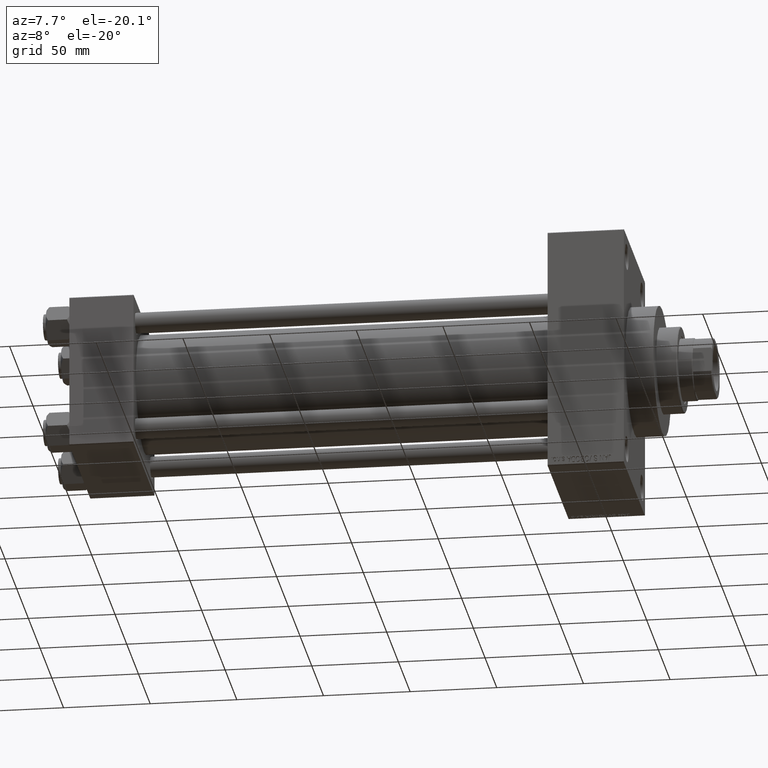
[diagram: clean part render]
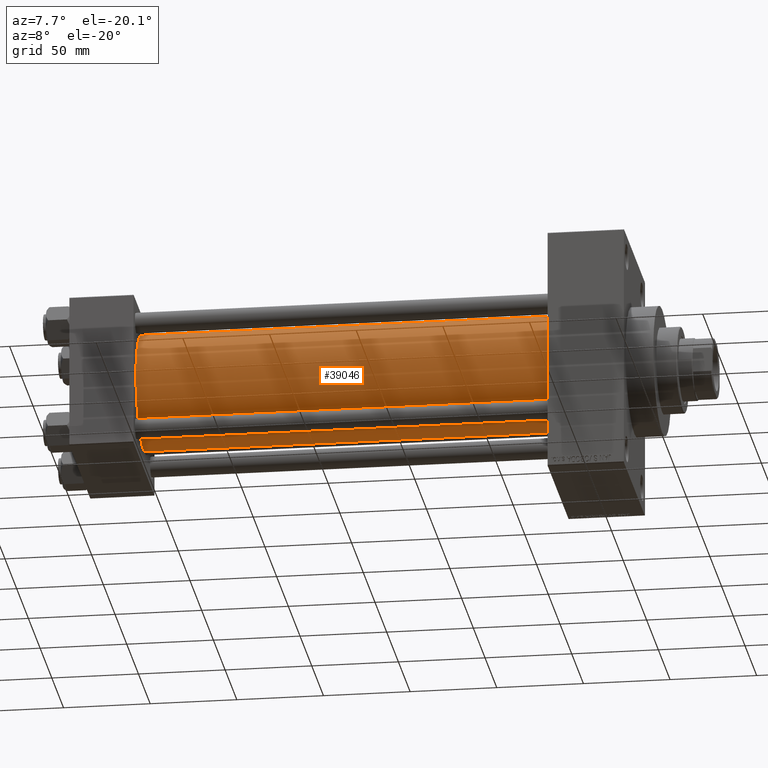
[diagram: same view with one face highlighted and labeled with its STEP entity id]
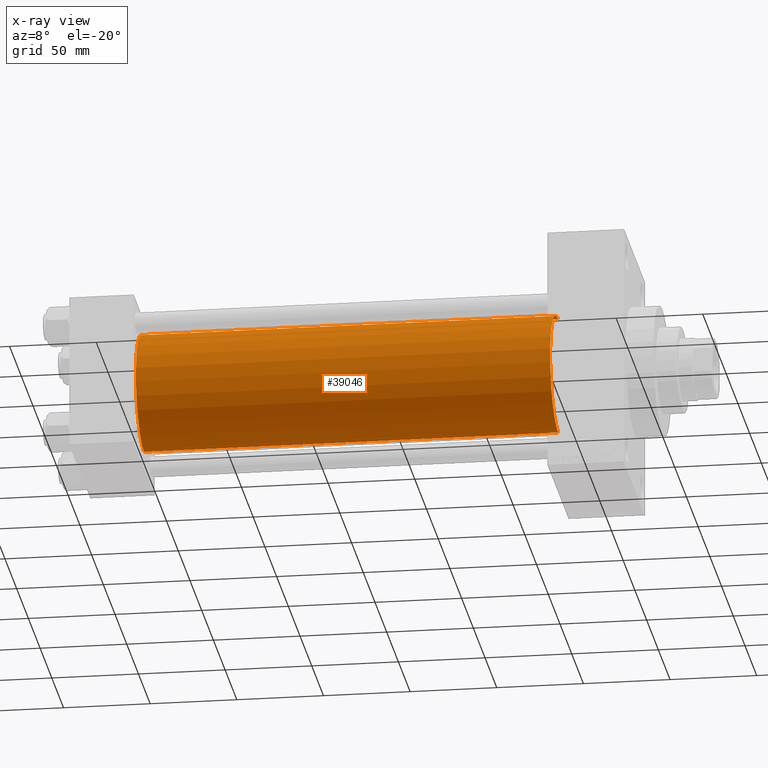
[diagram: x-ray of the same camera — body ghosted, the highlighted face saturated]
A machine part, auxiliary view. The second image highlights one B-rep face of the part: STEP entity #39046.
The next image is the same camera in x-ray: the body ghosted, the highlighted face saturated — about 0% of this face is hidden behind the body in this view.
In plain terms, the highlighted cylindrical surface (partial cylindrical patch) has radius 34.5 mm, axis along (-1, -0, -0).
Its self-contained STEP definition (entity closure, byte-faithful):
#1284 = DIRECTION ( 'NONE',  ( 0.000000000000000000, 0.000000000000000000, 1.000000000000000000 ) ) ;
#1744 = CARTESIAN_POINT ( 'NONE',  ( 275.9999999999999432, -2.602085213965210642E-15, 0.000000000000000000 ) ) ;
#1956 = DIRECTION ( 'NONE',  ( -1.000000000000000000, -0.000000000000000000, -0.000000000000000000 ) ) ;
#3676 = VECTOR ( 'NONE', #10392, 1000.000000000000000 ) ;
#4216 = DIRECTION ( 'NONE',  ( 1.000000000000000000, 0.000000000000000000, 0.000000000000000000 ) ) ;
#4290 = VERTEX_POINT ( 'NONE', #24306 ) ;
#5064 = FACE_OUTER_BOUND ( 'NONE', #7220, .T. ) ;
#7220 = EDGE_LOOP ( 'NONE', ( #24670, #46202, #25426, #37712 ) ) ;
#8781 = EDGE_CURVE ( 'NONE', #19589, #17750, #16852, .T. ) ;
#10392 = DIRECTION ( 'NONE',  ( -1.000000000000000000, -0.000000000000000000, -0.000000000000000000 ) ) ;
#12787 = AXIS2_PLACEMENT_3D ( 'NONE', #1744, #34178, #1284 ) ;
#14708 = DIRECTION ( 'NONE',  ( 0.000000000000000000, 0.000000000000000000, -1.000000000000000000 ) ) ;
#15893 = VECTOR ( 'NONE', #1956, 1000.000000000000000 ) ;
#16852 = LINE ( 'NONE', #35933, #3676 ) ;
#17106 = DIRECTION ( 'NONE',  ( 1.000000000000000000, -0.000000000000000000, 0.000000000000000000 ) ) ;
#17750 = VERTEX_POINT ( 'NONE', #42180 ) ;
#19589 = VERTEX_POINT ( 'NONE', #33697 ) ;
#19619 = CYLINDRICAL_SURFACE ( 'NONE', #12787, 34.50000000000000000 ) ;
#23337 = EDGE_CURVE ( 'NONE', #4290, #17750, #33901, .T. ) ;
#23411 = CARTESIAN_POINT ( 'NONE',  ( 275.9999999999999432, -2.602085213965210642E-15, 34.50000000000000000 ) ) ;
#24306 = CARTESIAN_POINT ( 'NONE',  ( 37.00000000000000711, -2.602085213965210642E-15, 34.50000000000000000 ) ) ;
#24670 = ORIENTED_EDGE ( 'NONE', *, *, #8781, .F. ) ;
#25426 = ORIENTED_EDGE ( 'NONE', *, *, #40396, .T. ) ;
#27140 = CIRCLE ( 'NONE', #40104, 34.50000000000000000 ) ;
#29424 = CARTESIAN_POINT ( 'NONE',  ( 275.9999999999999432, -2.602085213965210642E-15, 34.50000000000000000 ) ) ;
#30532 = EDGE_CURVE ( 'NONE', #45256, #19589, #27140, .T. ) ;
#30585 = LINE ( 'NONE', #23411, #15893 ) ;
#33326 = CARTESIAN_POINT ( 'NONE',  ( 275.9999999999999432, -2.602085213965210642E-15, 0.000000000000000000 ) ) ;
#33697 = CARTESIAN_POINT ( 'NONE',  ( 275.9999999999999432, 1.622946243093157097E-15, -34.50000000000000000 ) ) ;
#33901 = CIRCLE ( 'NONE', #36940, 34.50000000000000000 ) ;
#34178 = DIRECTION ( 'NONE',  ( -1.000000000000000000, -0.000000000000000000, -0.000000000000000000 ) ) ;
#35713 = CARTESIAN_POINT ( 'NONE',  ( 37.00000000000000711, -2.602085213965210642E-15, 0.000000000000000000 ) ) ;
#35933 = CARTESIAN_POINT ( 'NONE',  ( 275.9999999999999432, 1.622946243093157097E-15, -34.50000000000000000 ) ) ;
#36940 = AXIS2_PLACEMENT_3D ( 'NONE', #35713, #17106, #38572 ) ;
#37712 = ORIENTED_EDGE ( 'NONE', *, *, #23337, .T. ) ;
#38572 = DIRECTION ( 'NONE',  ( 0.000000000000000000, 0.000000000000000000, 1.000000000000000000 ) ) ;
#39046 = ADVANCED_FACE ( 'NONE', ( #5064 ), #19619, .T. ) ;
#40104 = AXIS2_PLACEMENT_3D ( 'NONE', #33326, #4216, #14708 ) ;
#40396 = EDGE_CURVE ( 'NONE', #45256, #4290, #30585, .T. ) ;
#42180 = CARTESIAN_POINT ( 'NONE',  ( 37.00000000000000711, 1.622946243093157097E-15, -34.50000000000000000 ) ) ;
#45256 = VERTEX_POINT ( 'NONE', #29424 ) ;
#46202 = ORIENTED_EDGE ( 'NONE', *, *, #30532, .F. ) ;